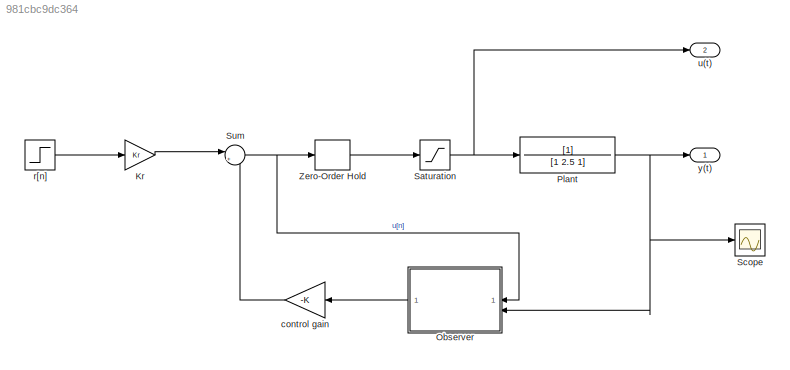
MODEL slx_981cbc9dc364
KIND model
CONFIG AbsTol = auto
CONFIG EnableMultiTasking = off
CONFIG FixedStep = auto
CONFIG MaxStep = auto
CONFIG MinStep = auto
CONFIG RelTol = 1e-3
CONFIG SampleTimeConstraint = Unconstrained
CONFIG SolverName = VariableStepAuto
CONFIG StartTime = 0.0
CONFIG StopTime = 10
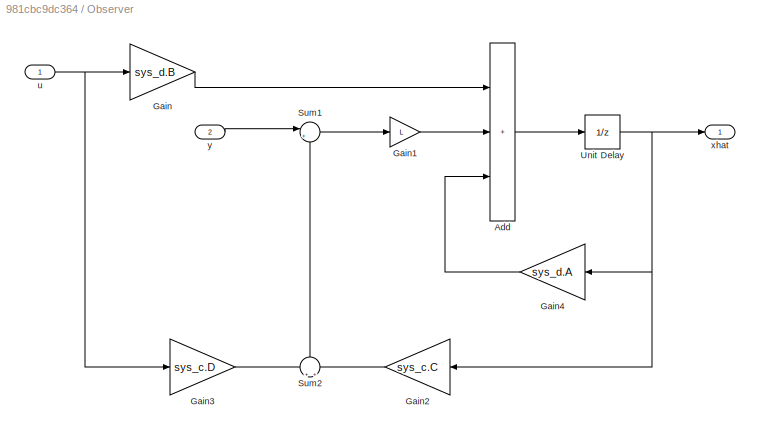
BLOCK [SubSystem]  Observer 
BLOCK [Sum]  Observer /Add
  IconShape = rectangular
  Inputs = +++
BLOCK [Gain]  Observer /Gain
  Gain = sys_d.B
  Multiplication = Matrix(K*u)
BLOCK [Gain]  Observer /Gain1
  Gain = L
  Multiplication = Matrix(K*u) (u vector)
BLOCK [Gain]  Observer /Gain2
  Gain = sys_c.C
  Multiplication = Matrix(K*u)
BLOCK [Gain]  Observer /Gain3
  Gain = sys_c.D
  Multiplication = Matrix(K*u)
BLOCK [Gain]  Observer /Gain4
  Gain = sys_d.A
  Multiplication = Matrix(K*u)
BLOCK [Sum]  Observer /Sum1
  Inputs = |+-
BLOCK [Sum]  Observer /Sum2
  Inputs = +|+
  NameLocation = right
BLOCK [UnitDelay]  Observer /Unit Delay 
  HasFrameUpgradeWarning = on
  SampleTime = -1
BLOCK [Inport]  Observer /u
BLOCK [Outport]  Observer /xhat
BLOCK [Inport]  Observer /y
  Port = 2
BLOCK [Gain] Kr
  Gain = Kr
BLOCK [TransferFcn] Plant
  Denominator = [1 2.5 1]
BLOCK [Saturate] Saturation 
  LowerLimit = 0
  UpperLimit = 5
BLOCK [Scope] Scope
  Floating = off
  NumInputPorts = 1
  ScopeSpecificationString = Simulink.scopes.TimeScopeBlockCfg('CurrentConfiguration', extmgr.ConfigurationSet(extmgr.Configuration('Core','General UI',true),extmgr.Configuration('Core','Source UI',true),extmgr.Configuration('Sources','WiredSimulink',true),extmgr.Configuration('Visuals','Time Domain',true,'SerializedDisplays',{struct('MinYLimReal','-0.3176','MaxYLimReal','2.85839','YLabelReal','','MinYLimMag','0.00000','MaxYL...<+1384ch>
BLOCK [Sum] Sum
  Inputs = |++
BLOCK [ZeroOrderHold] Zero-Order Hold 
  SampleTime = 0.1
BLOCK [Gain] control gain
  Gain = -K
  Multiplication = Matrix(K*u)
BLOCK [Step] r[n]
  After = 2.5
  SampleTime = 0
  Time = 0
BLOCK [Outport] u(t)
  Port = 2
  SignalName = u
BLOCK [Outport] y(t)
  SignalName = y
LINE  Observer /Add:1 ->  Observer /Unit Delay :1
LINE  Observer /Gain1:1 ->  Observer /Add:2
LINE  Observer /Gain2:1 ->  Observer /Sum2:2
LINE  Observer /Gain3:1 ->  Observer /Sum2:1
LINE  Observer /Gain4:1 ->  Observer /Add:3
LINE  Observer /Gain:1 ->  Observer /Add:1
LINE  Observer /Sum1:1 ->  Observer /Gain1:1
LINE  Observer /Sum2:1 ->  Observer /Sum1:2
NET  Observer /Unit Delay :1 ->  Observer /Gain2:1,  Observer /Gain4:1,  Observer /xhat:1
NET  Observer /u:1 ->  Observer /Gain3:1,  Observer /Gain:1
LINE  Observer /y:1 ->  Observer /Sum1:1
LINE  Observer :1 -> control gain:1
LINE Kr:1 -> Sum:1
NET Plant:1 ->  Observer :2, Scope:1, y(t):1
NET Saturation :1 -> Plant:1, u(t):1
NET Sum:1 ->  Observer :1, Zero-Order Hold :1
LINE Zero-Order Hold :1 -> Saturation :1
LINE control gain:1 -> Sum:2
LINE r[n]:1 -> Kr:1
note: NET lines group one-source signal fan-out (src -> all destinations, sorted); 1:1 wires keep LINE
